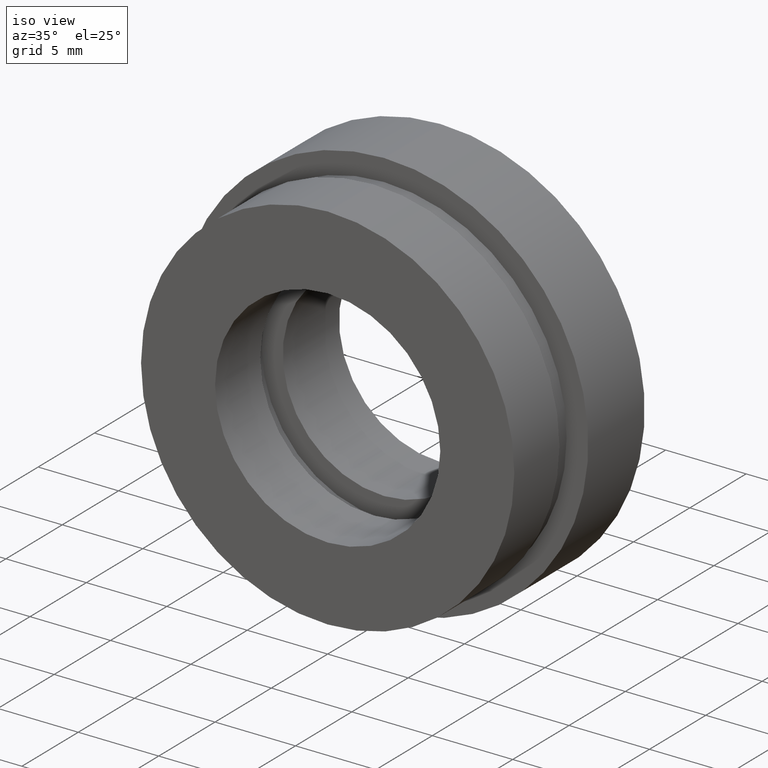
[diagram: clean part render]
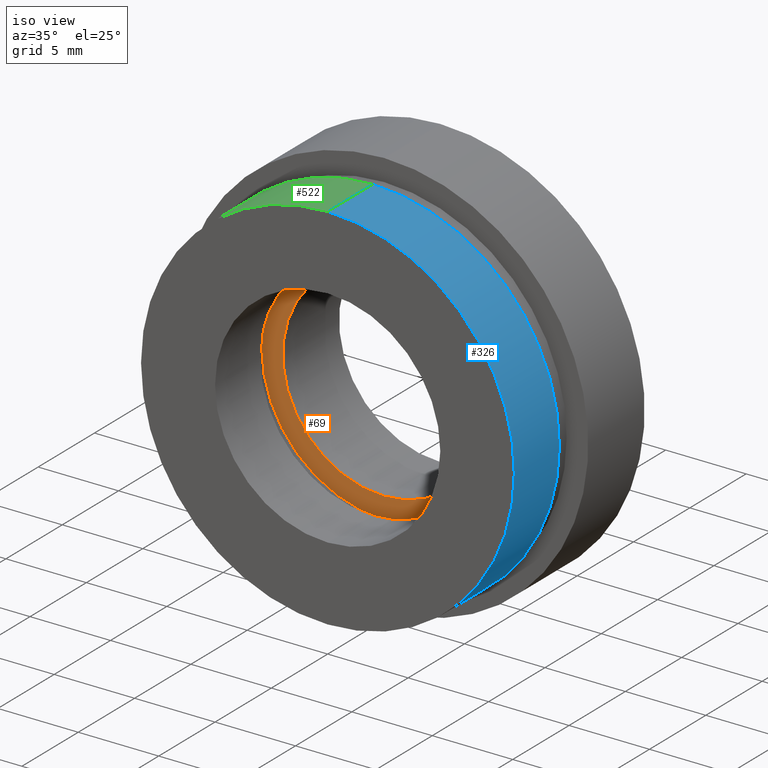
[diagram: same view with three faces highlighted in distinct colors, each labeled with its STEP entity id]
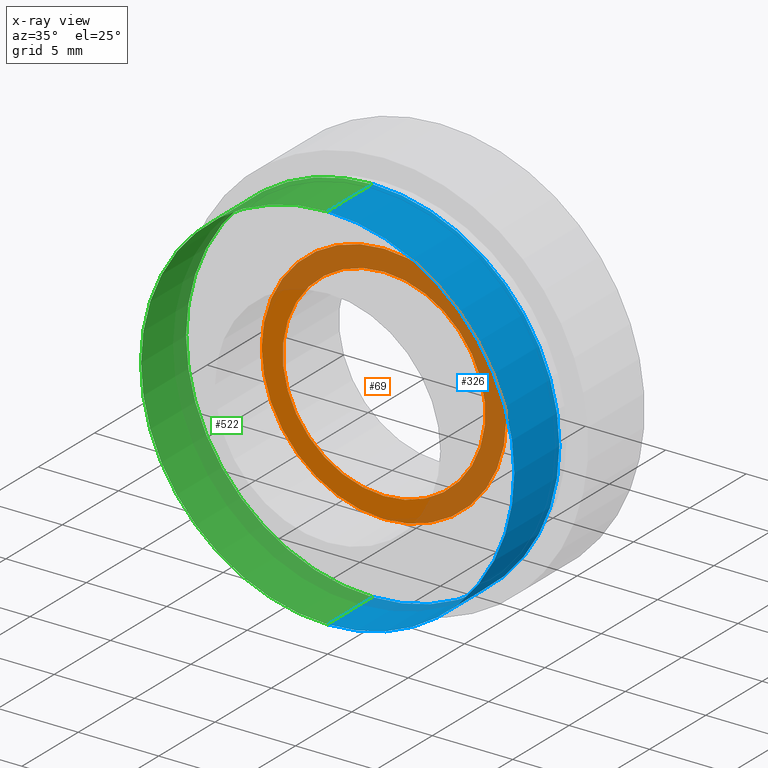
[diagram: x-ray of the same camera — body ghosted, the three highlighted faces saturated]
A machine part, iso view with three faces highlighted in distinct colors.
The next image is the same camera in x-ray (body ghosted, the three faces saturated) — at least one of them is partly hidden behind the body in this view.
Their STEP definitions:

[orange] entity #69 — the highlighted planar face has unit normal (-0, 1, 0).
#13 = AXIS2_PLACEMENT_3D ( 'NONE', #235, #245, #289 ) ;
#26 = CARTESIAN_POINT ( 'NONE',  ( 0.0000000000000000000, 4.999999999999999100, 0.0000000000000000000 ) ) ;
#31 = DIRECTION ( 'NONE',  ( -0.0000000000000000000, 1.000000000000000000, -0.0000000000000000000 ) ) ;
#36 = DIRECTION ( 'NONE',  ( 0.0000000000000000000, 0.0000000000000000000, 1.000000000000000000 ) ) ;
#46 = DIRECTION ( 'NONE',  ( 0.0000000000000000000, 0.0000000000000000000, 1.000000000000000000 ) ) ;
#47 = DIRECTION ( 'NONE',  ( 0.0000000000000000000, 0.0000000000000000000, 1.000000000000000000 ) ) ;
#51 = EDGE_LOOP ( 'NONE', ( #368, #535 ) ) ;
#66 = EDGE_LOOP ( 'NONE', ( #217, #584 ) ) ;
#69 = ADVANCED_FACE ( 'NONE', ( #186, #170 ), #206, .F. ) ;
#71 = AXIS2_PLACEMENT_3D ( 'NONE', #545, #547, #47 ) ;
#96 = VERTEX_POINT ( 'NONE', #118 ) ;
#116 = AXIS2_PLACEMENT_3D ( 'NONE', #191, #226, #203 ) ;
#118 = CARTESIAN_POINT ( 'NONE',  ( 0.0000000000000000000, 4.999999999999999100, 7.600000000000001400 ) ) ;
#127 = VERTEX_POINT ( 'NONE', #440 ) ;
#142 = AXIS2_PLACEMENT_3D ( 'NONE', #26, #31, #36 ) ;
#144 = VERTEX_POINT ( 'NONE', #578 ) ;
#170 = FACE_BOUND ( 'NONE', #51, .T. ) ;
#186 = FACE_OUTER_BOUND ( 'NONE', #66, .T. ) ;
#191 = CARTESIAN_POINT ( 'NONE',  ( 0.0000000000000000000, 4.999999999999999100, 0.0000000000000000000 ) ) ;
#195 = CIRCLE ( 'NONE', #142, 6.295000000000001700 ) ;
#203 = DIRECTION ( 'NONE',  ( 0.0000000000000000000, 0.0000000000000000000, 1.000000000000000000 ) ) ;
#206 = PLANE ( 'NONE',  #357 ) ;
#217 = ORIENTED_EDGE ( 'NONE', *, *, #532, .F. ) ;
#226 = DIRECTION ( 'NONE',  ( -0.0000000000000000000, 1.000000000000000000, -0.0000000000000000000 ) ) ;
#235 = CARTESIAN_POINT ( 'NONE',  ( 0.0000000000000000000, 4.999999999999999100, 0.0000000000000000000 ) ) ;
#245 = DIRECTION ( 'NONE',  ( -0.0000000000000000000, 1.000000000000000000, -0.0000000000000000000 ) ) ;
#284 = CIRCLE ( 'NONE', #71, 7.600000000000001400 ) ;
#289 = DIRECTION ( 'NONE',  ( 0.0000000000000000000, 0.0000000000000000000, 1.000000000000000000 ) ) ;
#322 = CIRCLE ( 'NONE', #116, 6.295000000000001700 ) ;
#357 = AXIS2_PLACEMENT_3D ( 'NONE', #605, #521, #46 ) ;
#368 = ORIENTED_EDGE ( 'NONE', *, *, #432, .T. ) ;
#432 = EDGE_CURVE ( 'NONE', #533, #127, #195, .T. ) ;
#440 = CARTESIAN_POINT ( 'NONE',  ( 7.709151600632590500E-016, 4.999999999999999100, -6.295000000000001700 ) ) ;
#442 = EDGE_CURVE ( 'NONE', #127, #533, #322, .T. ) ;
#491 = EDGE_CURVE ( 'NONE', #144, #96, #284, .T. ) ;
#521 = DIRECTION ( 'NONE',  ( -0.0000000000000000000, 1.000000000000000000, 0.0000000000000000000 ) ) ;
#532 = EDGE_CURVE ( 'NONE', #96, #144, #580, .T. ) ;
#533 = VERTEX_POINT ( 'NONE', #562 ) ;
#535 = ORIENTED_EDGE ( 'NONE', *, *, #442, .T. ) ;
#545 = CARTESIAN_POINT ( 'NONE',  ( 0.0000000000000000000, 4.999999999999999100, 0.0000000000000000000 ) ) ;
#547 = DIRECTION ( 'NONE',  ( -0.0000000000000000000, 1.000000000000000000, -0.0000000000000000000 ) ) ;
#562 = CARTESIAN_POINT ( 'NONE',  ( 0.0000000000000000000, 4.999999999999999100, 6.295000000000001700 ) ) ;
#578 = CARTESIAN_POINT ( 'NONE',  ( 9.307315673519887400E-016, 4.999999999999999100, -7.600000000000002300 ) ) ;
#580 = CIRCLE ( 'NONE', #13, 7.600000000000001400 ) ;
#584 = ORIENTED_EDGE ( 'NONE', *, *, #491, .F. ) ;
#605 = CARTESIAN_POINT ( 'NONE',  ( 7.600000000000001400, 4.999999999999999100, 0.0000000000000000000 ) ) ;

[blue] entity #326 — the highlighted cylindrical surface (partial cylindrical patch) has radius 11.6 mm, axis along (-0, 1, -0).
#6 = CARTESIAN_POINT ( 'NONE',  ( 0.0000000000000000000, 0.0000000000000000000, 0.0000000000000000000 ) ) ;
#8 = ORIENTED_EDGE ( 'NONE', *, *, #388, .F. ) ;
#39 = CARTESIAN_POINT ( 'NONE',  ( 0.0000000000000000000, 4.000000000000000000, 0.0000000000000000000 ) ) ;
#42 = CIRCLE ( 'NONE', #365, 11.60000000000000000 ) ;
#62 = DIRECTION ( 'NONE',  ( 0.0000000000000000000, 0.0000000000000000000, 1.000000000000000000 ) ) ;
#80 = EDGE_CURVE ( 'NONE', #146, #172, #42, .T. ) ;
#146 = VERTEX_POINT ( 'NONE', #534 ) ;
#155 = AXIS2_PLACEMENT_3D ( 'NONE', #39, #543, #564 ) ;
#157 = DIRECTION ( 'NONE',  ( -0.0000000000000000000, 1.000000000000000000, -0.0000000000000000000 ) ) ;
#162 = EDGE_LOOP ( 'NONE', ( #292, #435, #487, #8 ) ) ;
#172 = VERTEX_POINT ( 'NONE', #294 ) ;
#187 = AXIS2_PLACEMENT_3D ( 'NONE', #419, #451, #62 ) ;
#231 = CYLINDRICAL_SURFACE ( 'NONE', #187, 11.60000000000000000 ) ;
#237 = CARTESIAN_POINT ( 'NONE',  ( 1.420590287010929500E-015, 4.000000000000000000, -11.60000000000000000 ) ) ;
#238 = CIRCLE ( 'NONE', #155, 11.60000000000000000 ) ;
#292 = ORIENTED_EDGE ( 'NONE', *, *, #80, .T. ) ;
#294 = CARTESIAN_POINT ( 'NONE',  ( 1.420590287010929500E-015, 0.0000000000000000000, -11.60000000000000000 ) ) ;
#310 = CARTESIAN_POINT ( 'NONE',  ( 0.0000000000000000000, 4.000000000000000000, 11.60000000000000000 ) ) ;
#317 = CARTESIAN_POINT ( 'NONE',  ( 0.0000000000000000000, 13.74468085106383300, 11.60000000000000000 ) ) ;
#319 = DIRECTION ( 'NONE',  ( -0.0000000000000000000, 1.000000000000000000, -0.0000000000000000000 ) ) ;
#320 = DIRECTION ( 'NONE',  ( -0.0000000000000000000, 1.000000000000000000, -0.0000000000000000000 ) ) ;
#326 = ADVANCED_FACE ( 'NONE', ( #372 ), #231, .T. ) ;
#327 = CARTESIAN_POINT ( 'NONE',  ( 1.420590287010929500E-015, 13.74468085106383300, -11.60000000000000000 ) ) ;
#360 = LINE ( 'NONE', #317, #485 ) ;
#365 = AXIS2_PLACEMENT_3D ( 'NONE', #6, #157, #406 ) ;
#372 = FACE_OUTER_BOUND ( 'NONE', #162, .T. ) ;
#388 = EDGE_CURVE ( 'NONE', #146, #520, #360, .T. ) ;
#395 = EDGE_CURVE ( 'NONE', #520, #438, #238, .T. ) ;
#406 = DIRECTION ( 'NONE',  ( 0.0000000000000000000, 0.0000000000000000000, 1.000000000000000000 ) ) ;
#419 = CARTESIAN_POINT ( 'NONE',  ( 0.0000000000000000000, 13.74468085106383300, 0.0000000000000000000 ) ) ;
#435 = ORIENTED_EDGE ( 'NONE', *, *, #598, .T. ) ;
#438 = VERTEX_POINT ( 'NONE', #237 ) ;
#451 = DIRECTION ( 'NONE',  ( -0.0000000000000000000, 1.000000000000000000, -0.0000000000000000000 ) ) ;
#485 = VECTOR ( 'NONE', #319, 1000.000000000000000 ) ;
#486 = VECTOR ( 'NONE', #320, 1000.000000000000000 ) ;
#487 = ORIENTED_EDGE ( 'NONE', *, *, #395, .F. ) ;
#520 = VERTEX_POINT ( 'NONE', #310 ) ;
#534 = CARTESIAN_POINT ( 'NONE',  ( 0.0000000000000000000, 0.0000000000000000000, 11.60000000000000000 ) ) ;
#543 = DIRECTION ( 'NONE',  ( -0.0000000000000000000, 1.000000000000000000, -0.0000000000000000000 ) ) ;
#564 = DIRECTION ( 'NONE',  ( 0.0000000000000000000, 0.0000000000000000000, 1.000000000000000000 ) ) ;
#598 = EDGE_CURVE ( 'NONE', #172, #438, #614, .T. ) ;
#614 = LINE ( 'NONE', #327, #486 ) ;

[green] entity #522 — the highlighted cylindrical surface (partial cylindrical patch) has radius 11.6 mm, axis along (-0, 1, -0).
#4 = AXIS2_PLACEMENT_3D ( 'NONE', #496, #594, #503 ) ;
#11 = CARTESIAN_POINT ( 'NONE',  ( 0.0000000000000000000, 4.000000000000000000, 0.0000000000000000000 ) ) ;
#24 = DIRECTION ( 'NONE',  ( -0.0000000000000000000, 1.000000000000000000, -0.0000000000000000000 ) ) ;
#41 = FACE_OUTER_BOUND ( 'NONE', #359, .T. ) ;
#43 = CIRCLE ( 'NONE', #111, 11.60000000000000000 ) ;
#111 = AXIS2_PLACEMENT_3D ( 'NONE', #215, #218, #228 ) ;
#136 = AXIS2_PLACEMENT_3D ( 'NONE', #11, #24, #269 ) ;
#146 = VERTEX_POINT ( 'NONE', #534 ) ;
#172 = VERTEX_POINT ( 'NONE', #294 ) ;
#207 = CYLINDRICAL_SURFACE ( 'NONE', #4, 11.60000000000000000 ) ;
#215 = CARTESIAN_POINT ( 'NONE',  ( 0.0000000000000000000, 0.0000000000000000000, 0.0000000000000000000 ) ) ;
#218 = DIRECTION ( 'NONE',  ( -0.0000000000000000000, 1.000000000000000000, -0.0000000000000000000 ) ) ;
#221 = CIRCLE ( 'NONE', #136, 11.60000000000000000 ) ;
#228 = DIRECTION ( 'NONE',  ( 0.0000000000000000000, 0.0000000000000000000, 1.000000000000000000 ) ) ;
#237 = CARTESIAN_POINT ( 'NONE',  ( 1.420590287010929500E-015, 4.000000000000000000, -11.60000000000000000 ) ) ;
#266 = ORIENTED_EDGE ( 'NONE', *, *, #468, .T. ) ;
#269 = DIRECTION ( 'NONE',  ( 0.0000000000000000000, 0.0000000000000000000, 1.000000000000000000 ) ) ;
#278 = ORIENTED_EDGE ( 'NONE', *, *, #388, .T. ) ;
#294 = CARTESIAN_POINT ( 'NONE',  ( 1.420590287010929500E-015, 0.0000000000000000000, -11.60000000000000000 ) ) ;
#310 = CARTESIAN_POINT ( 'NONE',  ( 0.0000000000000000000, 4.000000000000000000, 11.60000000000000000 ) ) ;
#317 = CARTESIAN_POINT ( 'NONE',  ( 0.0000000000000000000, 13.74468085106383300, 11.60000000000000000 ) ) ;
#319 = DIRECTION ( 'NONE',  ( -0.0000000000000000000, 1.000000000000000000, -0.0000000000000000000 ) ) ;
#320 = DIRECTION ( 'NONE',  ( -0.0000000000000000000, 1.000000000000000000, -0.0000000000000000000 ) ) ;
#327 = CARTESIAN_POINT ( 'NONE',  ( 1.420590287010929500E-015, 13.74468085106383300, -11.60000000000000000 ) ) ;
#359 = EDGE_LOOP ( 'NONE', ( #595, #266, #278, #524 ) ) ;
#360 = LINE ( 'NONE', #317, #485 ) ;
#388 = EDGE_CURVE ( 'NONE', #146, #520, #360, .T. ) ;
#428 = EDGE_CURVE ( 'NONE', #438, #520, #221, .T. ) ;
#438 = VERTEX_POINT ( 'NONE', #237 ) ;
#468 = EDGE_CURVE ( 'NONE', #172, #146, #43, .T. ) ;
#485 = VECTOR ( 'NONE', #319, 1000.000000000000000 ) ;
#486 = VECTOR ( 'NONE', #320, 1000.000000000000000 ) ;
#496 = CARTESIAN_POINT ( 'NONE',  ( 0.0000000000000000000, 13.74468085106383300, 0.0000000000000000000 ) ) ;
#503 = DIRECTION ( 'NONE',  ( 0.0000000000000000000, 0.0000000000000000000, 1.000000000000000000 ) ) ;
#520 = VERTEX_POINT ( 'NONE', #310 ) ;
#522 = ADVANCED_FACE ( 'NONE', ( #41 ), #207, .T. ) ;
#524 = ORIENTED_EDGE ( 'NONE', *, *, #428, .F. ) ;
#534 = CARTESIAN_POINT ( 'NONE',  ( 0.0000000000000000000, 0.0000000000000000000, 11.60000000000000000 ) ) ;
#594 = DIRECTION ( 'NONE',  ( -0.0000000000000000000, 1.000000000000000000, -0.0000000000000000000 ) ) ;
#595 = ORIENTED_EDGE ( 'NONE', *, *, #598, .F. ) ;
#598 = EDGE_CURVE ( 'NONE', #172, #438, #614, .T. ) ;
#614 = LINE ( 'NONE', #327, #486 ) ;